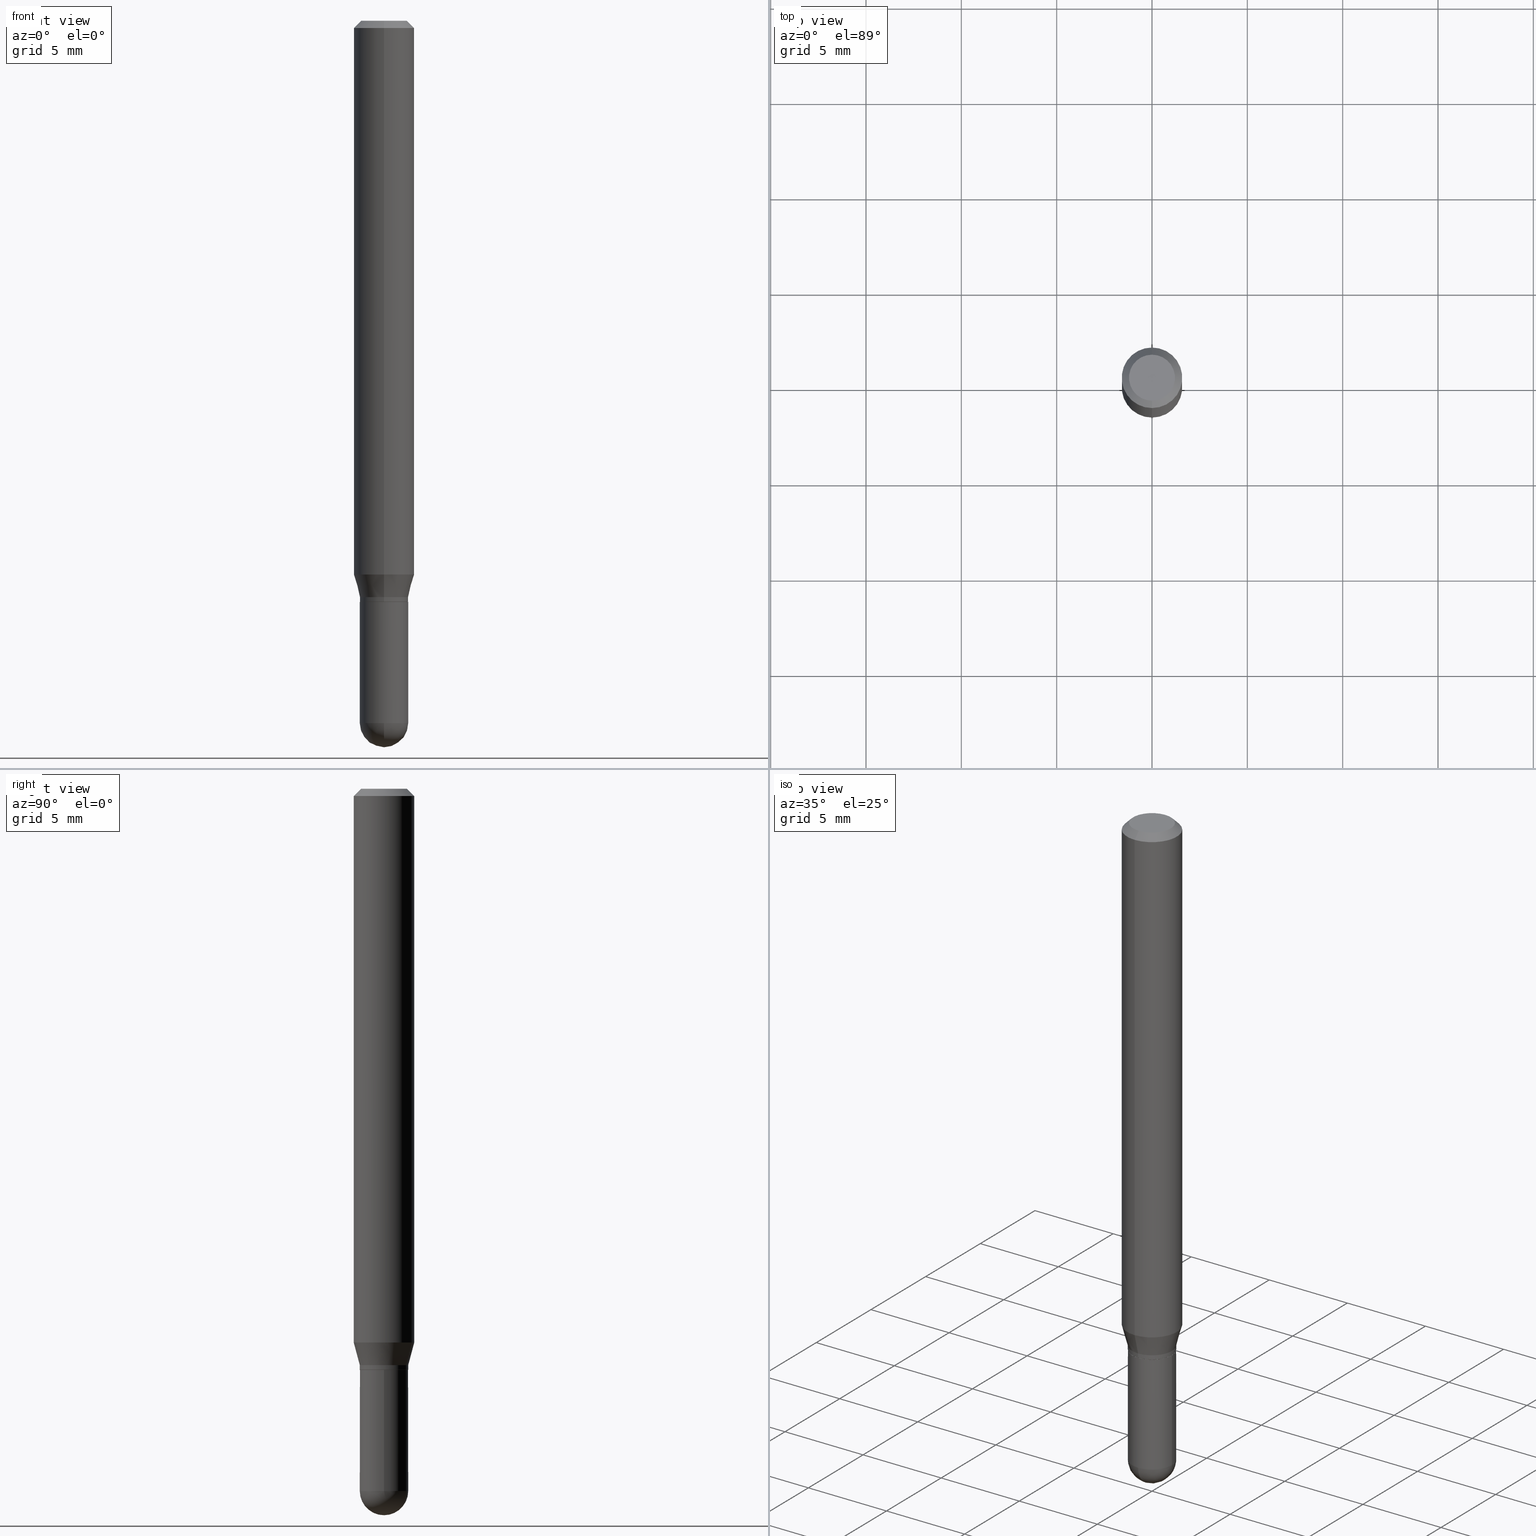
[diagram: canonical four-view strip — front | top / right | iso, engineering-drawing reading convention]
A machine part, canonical four-view strip (front | top / right | iso — engineering-drawing reading convention). The complete STEP part file that produces these views, byte-faithful:
ISO-10303-21;
HEADER;
FILE_DESCRIPTION (( 'STEP AP203' ),
    '1' );
FILE_NAME ('01494.STEP',
    '2024-03-07T21:42:19',
    ( '' ),
    ( '' ),
    'SwSTEP 2.0',
    'SolidWorks 2023',
    '' );
FILE_SCHEMA (( 'CONFIG_CONTROL_DESIGN' ));
ENDSEC;

DATA;
#1 = LINE ( 'NONE', #223, #100 ) ;
#2 = ORIENTED_EDGE ( 'NONE', *, *, #496, .F. ) ;
#3 = VECTOR ( 'NONE', #41, 39.37007874015748143 ) ;
#4 = PRODUCT ( '01494', '01494', '', ( #506 ) ) ;
#5 = EDGE_CURVE ( 'NONE', #416, #220, #344, .T. ) ;
#6 = FACE_OUTER_BOUND ( 'NONE', #309, .T. ) ;
#7 = DIRECTION ( 'NONE',  ( 7.105427357601001070E-15, 1.000000000000000000, 0.000000000000000000 ) ) ;
#8 = AXIS2_PLACEMENT_3D ( 'NONE', #204, #370, #127 ) ;
#9 = VERTEX_POINT ( 'NONE', #304 ) ;
#10 = AXIS2_PLACEMENT_3D ( 'NONE', #97, #431, #78 ) ;
#11 = EDGE_CURVE ( 'NONE', #9, #348, #324, .T. ) ;
#12 = DIRECTION ( 'NONE',  ( -2.445464009706415919E-29, 3.491488207673672253E-15, 1.000000000000000000 ) ) ;
#13 = FACE_OUTER_BOUND ( 'NONE', #422, .T. ) ;
#14 = DIRECTION ( 'NONE',  ( 1.000000000000000000, -6.982962677686265922E-15, 4.883557194083111780E-29 ) ) ;
#15 = DIRECTION ( 'NONE',  ( 5.024295867788190974E-15, 0.7071067811865681119, 0.7071067811865270336 ) ) ;
#16 = EDGE_CURVE ( 'NONE', #220, #398, #490, .T. ) ;
#17 = AXIS2_PLACEMENT_3D ( 'NONE', #193, #12, #311 ) ;
#18 = VECTOR ( 'NONE', #141, 39.37007874015748143 ) ;
#19 = PERSON ( 'UNSPECIFIED', 'UNSPECIFIED', 'UNSPECIFIED', ('UNSPECIFIED'), ('UNSPECIFIED'), ('UNSPECIFIED') ) ;
#20 = DATE_AND_TIME ( #206, #462 ) ;
#21 = SHAPE_DEFINITION_REPRESENTATION ( #42, #476 ) ;
#22 =( NAMED_UNIT ( * ) PLANE_ANGLE_UNIT ( ) SI_UNIT ( $, .RADIAN. ) );
#23 = CONICAL_SURFACE ( 'NONE', #305, 0.06250000000000000000, 0.7853981633974483900 ) ;
#24 = AXIS2_PLACEMENT_3D ( 'NONE', #163, #488, #121 ) ;
#25 = ADVANCED_FACE ( 'NONE', ( #387 ), #323, .T. ) ;
#26 = CARTESIAN_POINT ( 'NONE',  ( -3.773273898774340269E-16, -0.04749999999999999362, 1.569856965421183228E-16 ) ) ;
#27 = CIRCLE ( 'NONE', #10, 0.04999999999999999584 ) ;
#28 = APPROVAL_PERSON_ORGANIZATION ( #312, #358, #346 ) ;
#29 = DIRECTION ( 'NONE',  ( -6.982962677686265922E-15, -1.000000000000000000, 3.483106191921935554E-15 ) ) ;
#30 = ADVANCED_FACE ( 'NONE', ( #161 ), #122, .T. ) ;
#31 = ORIENTED_EDGE ( 'NONE', *, *, #16, .F. ) ;
#32 = ADVANCED_FACE ( 'NONE', ( #360 ), #23, .T. ) ;
#33 = DIRECTION ( 'NONE',  ( 0.000000000000000000, 0.000000000000000000, 1.000000000000000000 ) ) ;
#34 = CIRCLE ( 'NONE', #17, 0.05000000000000006523 ) ;
#35 = AXIS2_PLACEMENT_3D ( 'NONE', #480, #84, #155 ) ;
#36 = EDGE_LOOP ( 'NONE', ( #468, #299 ) ) ;
#37 = APPROVAL_STATUS ( 'not_yet_approved' ) ;
#38 = DIRECTION ( 'NONE',  ( -2.445468806185136597E-29, 3.491481338843145583E-15, 1.000000000000000000 ) ) ;
#39 = EDGE_LOOP ( 'NONE', ( #106, #419, #225, #69 ) ) ;
#40 = DIRECTION ( 'NONE',  ( -1.807323732225328167E-15, -0.2588190451025179084, 0.9659258262890690894 ) ) ;
#41 = DIRECTION ( 'NONE',  ( -2.445468806185136877E-29, 3.491481338843145188E-15, 1.000000000000000000 ) ) ;
#42 = PRODUCT_DEFINITION_SHAPE ( 'NONE', 'NONE',  #318 ) ;
#43 = CARTESIAN_POINT ( 'NONE',  ( 4.440892098500904235E-16, 0.06249999999999599626, -1.143349364905390075 ) ) ;
#44 = CYLINDRICAL_SURFACE ( 'NONE', #453, 0.05000000000000006523 ) ;
#45 = ORIENTED_EDGE ( 'NONE', *, *, #336, .T. ) ;
#46 = DIMENSIONAL_EXPONENTS ( 1.000000000000000000, 0.000000000000000000, 0.000000000000000000, 0.000000000000000000, 0.000000000000000000, 0.000000000000000000, 0.000000000000000000 ) ;
#47 = LINE ( 'NONE', #278, #461 ) ;
#48 = CARTESIAN_POINT ( 'NONE',  ( 3.541653937522551347E-29, -5.068771175318297793E-15, -1.450000000000000178 ) ) ;
#49 = ADVANCED_FACE ( 'NONE', ( #396 ), #482, .T. ) ;
#50 = DIRECTION ( 'NONE',  ( -6.982962677686265922E-15, -1.000000000000000000, 5.463695987328509871E-15 ) ) ;
#51 = AXIS2_PLACEMENT_3D ( 'NONE', #313, #116, #448 ) ;
#52 = PERSON_AND_ORGANIZATION_ROLE ( 'design_supplier' ) ;
#53 = CIRCLE ( 'NONE', #203, 0.04999999999999999584 ) ;
#54 = CC_DESIGN_APPROVAL ( #479, ( #297 ) ) ;
#55 = CARTESIAN_POINT ( 'NONE',  ( 3.840629472727447874E-16, 0.04749999999999999362, -1.747056831868805136E-16 ) ) ;
#56 = PERSON_AND_ORGANIZATION_ROLE ( 'classification_officer' ) ;
#57 = EDGE_LOOP ( 'NONE', ( #432, #245, #465, #293 ) ) ;
#58 = EDGE_CURVE ( 'NONE', #327, #62, #123, .T. ) ;
#59 = DIRECTION ( 'NONE',  ( 6.982962677686265922E-15, 1.000000000000000000, -3.483106191921935554E-15 ) ) ;
#60 = ORIENTED_EDGE ( 'NONE', *, *, #88, .T. ) ;
#61 = EDGE_CURVE ( 'NONE', #83, #259, #469, .T. ) ;
#62 = VERTEX_POINT ( 'NONE', #236 ) ;
#63 = AXIS2_PLACEMENT_3D ( 'NONE', #334, #33, #64 ) ;
#64 = DIRECTION ( 'NONE',  ( 1.000000000000000000, 0.000000000000000000, 0.000000000000000000 ) ) ;
#65 = DIRECTION ( 'NONE',  ( 6.982962677686265922E-15, 1.000000000000000000, -3.483106191921935554E-15 ) ) ;
#66 = CONICAL_SURFACE ( 'NONE', #279, 0.06250000000000000000, 0.7853981633974483900 ) ;
#67 = ORIENTED_EDGE ( 'NONE', *, *, #102, .F. ) ;
#68 = EDGE_CURVE ( 'NONE', #259, #83, #34, .T. ) ;
#69 = ORIENTED_EDGE ( 'NONE', *, *, #355, .F. ) ;
#70 = APPROVAL_ROLE ( '' ) ;
#71 = ORIENTED_EDGE ( 'NONE', *, *, #264, .F. ) ;
#72 = FACE_OUTER_BOUND ( 'NONE', #150, .T. ) ;
#73 = CIRCLE ( 'NONE', #251, 0.06250000000000000000 ) ;
#74 = DIRECTION ( 'NONE',  ( -6.982962677686265133E-15, -1.000000000000000000, 2.731847993664259669E-15 ) ) ;
#75 = DIRECTION ( 'NONE',  ( -2.445468806185136597E-29, 3.491481338843145583E-15, 1.000000000000000000 ) ) ;
#76 = DIRECTION ( 'NONE',  ( -6.982962677686265133E-15, -1.000000000000000000, 3.491488207673672253E-15 ) ) ;
#77 = ADVANCED_FACE ( 'NONE', ( #6 ), #195, .T. ) ;
#78 = DIRECTION ( 'NONE',  ( 1.000000000000000000, -6.982962677686275388E-15, 0.000000000000000000 ) ) ;
#79 = ORIENTED_EDGE ( 'NONE', *, *, #509, .T. ) ;
#80 = ORIENTED_EDGE ( 'NONE', *, *, #5, .F. ) ;
#81 = CARTESIAN_POINT ( 'NONE',  ( -3.491481338843137300E-16, -0.05000000000000006523, 1.745744103836838395E-16 ) ) ;
#82 = AXIS2_PLACEMENT_3D ( 'NONE', #447, #391, #351 ) ;
#83 = VERTEX_POINT ( 'NONE', #282 ) ;
#84 = DIRECTION ( 'NONE',  ( -2.445468806185136597E-29, 3.491481338843145583E-15, 1.000000000000000000 ) ) ;
#85 = DIRECTION ( 'NONE',  ( -2.445464009706415919E-29, 3.491488207673672253E-15, 1.000000000000000000 ) ) ;
#86 = ORIENTED_EDGE ( 'NONE', *, *, #228, .T. ) ;
#87 = DIRECTION ( 'NONE',  ( -2.445464009706415919E-29, 3.491488207673672253E-15, 1.000000000000000000 ) ) ;
#88 = EDGE_CURVE ( 'NONE', #369, #9, #320, .T. ) ;
#89 = AXIS2_PLACEMENT_3D ( 'NONE', #408, #393, #285 ) ;
#90 = CIRCLE ( 'NONE', #35, 0.04999999999999999584 ) ;
#91 = PERSON_AND_ORGANIZATION ( #19, #384 ) ;
#92 = ORIENTED_EDGE ( 'NONE', *, *, #301, .F. ) ;
#93 = EDGE_CURVE ( 'NONE', #340, #369, #445, .T. ) ;
#94 = CALENDAR_DATE ( 2024, 7, 3 ) ;
#95 = FACE_OUTER_BOUND ( 'NONE', #478, .T. ) ;
#96 =( GEOMETRIC_REPRESENTATION_CONTEXT ( 3 ) GLOBAL_UNCERTAINTY_ASSIGNED_CONTEXT ( ( #162 ) ) GLOBAL_UNIT_ASSIGNED_CONTEXT ( ( #374, #22, #457 ) ) REPRESENTATION_CONTEXT ( 'NONE', 'WORKASPACE' ) );
#97 = CARTESIAN_POINT ( 'NONE',  ( 3.545929768968448850E-29, -5.062647941322561509E-15, -1.450000000000000178 ) ) ;
#98 = FACE_OUTER_BOUND ( 'NONE', #267, .T. ) ;
#99 = CARTESIAN_POINT ( 'NONE',  ( -3.491481338842846900E-16, -0.05000000000000429101, -1.199500000000000011 ) ) ;
#100 = VECTOR ( 'NONE', #303, 39.37007874015748854 ) ;
#101 = ORIENTED_EDGE ( 'NONE', *, *, #61, .T. ) ;
#102 = EDGE_CURVE ( 'NONE', #416, #508, #284, .T. ) ;
#103 = ORIENTED_EDGE ( 'NONE', *, *, #125, .T. ) ;
#104 = ORIENTED_EDGE ( 'NONE', *, *, #354, .F. ) ;
#105 = LINE ( 'NONE', #261, #18 ) ;
#106 = ORIENTED_EDGE ( 'NONE', *, *, #337, .F. ) ;
#107 = ORIENTED_EDGE ( 'NONE', *, *, #450, .T. ) ;
#108 = PLANE ( 'NONE',  #109 ) ;
#109 = AXIS2_PLACEMENT_3D ( 'NONE', #133, #294, #343 ) ;
#110 = DIRECTION ( 'NONE',  ( -2.445464009706415919E-29, 3.491488207673672253E-15, 1.000000000000000000 ) ) ;
#111 = PRODUCT_RELATED_PRODUCT_CATEGORY ( 'detail', '', ( #4 ) ) ;
#112 = FACE_OUTER_BOUND ( 'NONE', #275, .T. ) ;
#113 = CARTESIAN_POINT ( 'NONE',  ( 3.517186542012788950E-16, 0.04949999999999581124, -1.200000000000000400 ) ) ;
#114 = EDGE_CURVE ( 'NONE', #340, #348, #47, .T. ) ;
#115 = EDGE_CURVE ( 'NONE', #348, #259, #119, .T. ) ;
#116 = DIRECTION ( 'NONE',  ( -2.445464009706415919E-29, 3.491488207673672253E-15, 1.000000000000000000 ) ) ;
#117 = VECTOR ( 'NONE', #214, 39.37007874015748143 ) ;
#118 = CARTESIAN_POINT ( 'NONE',  ( 2.796019722396818456E-29, -3.991990824818351621E-15, -1.143349364905389853 ) ) ;
#119 = LINE ( 'NONE', #81, #366 ) ;
#120 = LINE ( 'NONE', #237, #435 ) ;
#121 = DIRECTION ( 'NONE',  ( -6.982962677686265133E-15, -1.000000000000000000, 2.731847993664259669E-15 ) ) ;
#122 = CYLINDRICAL_SURFACE ( 'NONE', #51, 0.06250000000000000000 ) ;
#123 = CIRCLE ( 'NONE', #250, 0.05000000000000014849 ) ;
#124 = DATE_TIME_ROLE ( 'creation_date' ) ;
#125 = EDGE_CURVE ( 'NONE', #429, #260, #120, .T. ) ;
#126 = DATE_AND_TIME ( #329, #258 ) ;
#127 = DIRECTION ( 'NONE',  ( 6.982962677686265922E-15, 1.000000000000000000, -3.491488207673672253E-15 ) ) ;
#128 = APPROVAL_DATE_TIME ( #208, #358 ) ;
#129 = CLOSED_SHELL ( 'NONE', ( #77, #25, #132, #144, #263 ) ) ;
#130 = CIRCLE ( 'NONE', #210, 0.04749999999999999362 ) ;
#131 = CARTESIAN_POINT ( 'NONE',  ( 2.933334079642846339E-29, -4.188040105104570702E-15, -1.199500000000000233 ) ) ;
#132 = ADVANCED_FACE ( 'NONE', ( #363 ), #156, .F. ) ;
#133 = CARTESIAN_POINT ( 'NONE',  ( 2.934556811647699776E-29, -4.189785849208407808E-15, -1.200000000000000178 ) ) ;
#134 = APPLICATION_PROTOCOL_DEFINITION ( 'international standard', 'config_control_design', 1994, #406 ) ;
#135 = DIRECTION ( 'NONE',  ( 2.445464009706415919E-29, -3.491488207673672253E-15, -1.000000000000000000 ) ) ;
#136 = APPROVAL ( #295, 'UNSPECIFIED' ) ;
#137 = LINE ( 'NONE', #178, #139 ) ;
#138 = PERSON_AND_ORGANIZATION_ROLE ( 'design_owner' ) ;
#139 = VECTOR ( 'NONE', #505, 39.37007874015748143 ) ;
#140 = ORIENTED_EDGE ( 'NONE', *, *, #114, .T. ) ;
#141 = DIRECTION ( 'NONE',  ( -2.445468806185136877E-29, 3.491481338843145188E-15, 1.000000000000000000 ) ) ;
#142 = ORIENTED_EDGE ( 'NONE', *, *, #449, .F. ) ;
#143 = ORIENTED_EDGE ( 'NONE', *, *, #219, .T. ) ;
#144 = ADVANCED_FACE ( 'NONE', ( #441 ), #404, .T. ) ;
#145 = ORIENTED_EDGE ( 'NONE', *, *, #336, .F. ) ;
#146 = CARTESIAN_POINT ( 'NONE',  ( 0.000000000000000000, 0.000000000000000000, 0.000000000000000000 ) ) ;
#147 = LINE ( 'NONE', #418, #117 ) ;
#148 = DIRECTION ( 'NONE',  ( -6.982962677686266711E-15, -1.000000000000000000, 3.491488207673672253E-15 ) ) ;
#149 = AXIS2_PLACEMENT_3D ( 'NONE', #440, #239, #322 ) ;
#150 = EDGE_LOOP ( 'NONE', ( #176, #184, #243, #302 ) ) ;
#151 = CARTESIAN_POINT ( 'NONE',  ( -3.491481338842845914E-16, -0.05000000000000422162, -1.190000000000000391 ) ) ;
#152 = ORIENTED_EDGE ( 'NONE', *, *, #219, .F. ) ;
#153 = DIRECTION ( 'NONE',  ( -2.445468806185136597E-29, 3.491481338843145583E-15, 1.000000000000000000 ) ) ;
#154 = ORIENTED_EDGE ( 'NONE', *, *, #228, .F. ) ;
#155 = DIRECTION ( 'NONE',  ( 1.000000000000000000, -6.982962677686275388E-15, 0.000000000000000000 ) ) ;
#156 = PLANE ( 'NONE',  #315 ) ;
#157 = AXIS2_PLACEMENT_3D ( 'NONE', #332, #289, #451 ) ;
#158 = LOCAL_TIME ( 16, 42, 19.00000000000000000, #499 ) ;
#159 = MANIFOLD_SOLID_BREP ( 'Body-Move/Copy2[1]', #129 ) ;
#160 = DIRECTION ( 'NONE',  ( -4.851104656540964275E-15, -0.7071067811865500152, -0.7071067811865450192 ) ) ;
#161 = FACE_OUTER_BOUND ( 'NONE', #57, .T. ) ;
#162 = UNCERTAINTY_MEASURE_WITH_UNIT (LENGTH_MEASURE( 1.000000000000000082E-05 ), #374, 'distance_accuracy_value', 'NONE');
#163 = CARTESIAN_POINT ( 'NONE',  ( 2.910102171550636088E-29, -4.154870967131671208E-15, -1.190000000000000391 ) ) ;
#164 = DIRECTION ( 'NONE',  ( 1.000000000000000000, -6.982962677686275388E-15, 0.000000000000000000 ) ) ;
#165 = CIRCLE ( 'NONE', #233, 0.06250000000000000000 ) ;
#166 = ORIENTED_EDGE ( 'NONE', *, *, #58, .F. ) ;
#167 = CALENDAR_DATE ( 2024, 7, 3 ) ;
#168 = ADVANCED_FACE ( 'NONE', ( #240 ), #207, .T. ) ;
#169 = CC_DESIGN_PERSON_AND_ORGANIZATION_ASSIGNMENT ( #443, #400, ( #297 ) ) ;
#170 = PLANE ( 'NONE',  #8 ) ;
#171 = CLOSED_SHELL ( 'NONE', ( #454, #394, #487, #30, #49, #246, #168, #32, #202, #326, #191, #407 ) ) ;
#172 = AXIS2_PLACEMENT_3D ( 'NONE', #182, #338, #300 ) ;
#173 = FACE_OUTER_BOUND ( 'NONE', #466, .T. ) ;
#174 = FACE_OUTER_BOUND ( 'NONE', #39, .T. ) ;
#175 = CALENDAR_DATE ( 2024, 7, 3 ) ;
#176 = ORIENTED_EDGE ( 'NONE', *, *, #509, .F. ) ;
#177 = CC_DESIGN_PERSON_AND_ORGANIZATION_ASSIGNMENT ( #179, #138, ( #4 ) ) ;
#178 = CARTESIAN_POINT ( 'NONE',  ( 4.364351673553919652E-16, 0.06249999999999995143, -0.01500000000000022669 ) ) ;
#179 = PERSON_AND_ORGANIZATION ( #19, #384 ) ;
#180 = ORIENTED_EDGE ( 'NONE', *, *, #314, .T. ) ;
#181 = ORIENTED_EDGE ( 'NONE', *, *, #102, .T. ) ;
#182 = CARTESIAN_POINT ( 'NONE',  ( 2.934556811647699776E-29, -4.189785849208407808E-15, -1.200000000000000178 ) ) ;
#183 = AXIS2_PLACEMENT_3D ( 'NONE', #310, #473, #276 ) ;
#184 = ORIENTED_EDGE ( 'NONE', *, *, #11, .T. ) ;
#185 = CARTESIAN_POINT ( 'NONE',  ( 3.668196014559625946E-31, -5.237232311510511609E-17, -0.01500000000000000812 ) ) ;
#186 = ORIENTED_EDGE ( 'NONE', *, *, #11, .F. ) ;
#187 = VERTEX_POINT ( 'NONE', #26 ) ;
#188 = CARTESIAN_POINT ( 'NONE',  ( 0.000000000000000000, 0.000000000000000000, 0.000000000000000000 ) ) ;
#189 = AXIS2_PLACEMENT_3D ( 'NONE', #434, #485, #164 ) ;
#190 = ORIENTED_EDGE ( 'NONE', *, *, #5, .T. ) ;
#191 = ADVANCED_FACE ( 'NONE', ( #173 ), #241, .T. ) ;
#192 = CARTESIAN_POINT ( 'NONE',  ( 3.491481338843426713E-16, 0.04999999999999581168, -1.200000000000000400 ) ) ;
#193 = CARTESIAN_POINT ( 'NONE',  ( 2.910102171550636088E-29, -4.154870967131671208E-15, -1.190000000000000391 ) ) ;
#194 = CARTESIAN_POINT ( 'NONE',  ( -4.287811248607203282E-16, -0.06250000000000005551, -0.01499999999999979128 ) ) ;
#195 = CYLINDRICAL_SURFACE ( 'NONE', #417, 0.04999999999999999584 ) ;
#196 = CIRCLE ( 'NONE', #359, 0.06250000000000000000 ) ;
#197 = APPROVAL_STATUS ( 'not_yet_approved' ) ;
#198 = ORIENTED_EDGE ( 'NONE', *, *, #415, .F. ) ;
#199 = CARTESIAN_POINT ( 'NONE',  ( 3.541653937522551347E-29, -5.068771175318297793E-15, -1.450000000000000178 ) ) ;
#200 = ORIENTED_EDGE ( 'NONE', *, *, #88, .F. ) ;
#201 = CARTESIAN_POINT ( 'NONE',  ( 0.000000000000000000, 0.000000000000000000, 0.000000000000000000 ) ) ;
#202 = ADVANCED_FACE ( 'NONE', ( #95 ), #170, .F. ) ;
#203 = AXIS2_PLACEMENT_3D ( 'NONE', #459, #347, #217 ) ;
#204 = CARTESIAN_POINT ( 'NONE',  ( 3.316907271900976096E-16, 0.04749999999999999362, -1.702756865256899659E-16 ) ) ;
#205 = EDGE_CURVE ( 'NONE', #62, #416, #27, .T. ) ;
#206 = CALENDAR_DATE ( 2024, 7, 3 ) ;
#207 = CYLINDRICAL_SURFACE ( 'NONE', #222, 0.06250000000000000000 ) ;
#208 = DATE_AND_TIME ( #94, #158 ) ;
#209 = AXIS2_PLACEMENT_3D ( 'NONE', #280, #437, #356 ) ;
#210 = AXIS2_PLACEMENT_3D ( 'NONE', #319, #270, #148 ) ;
#211 = LOCAL_TIME ( 16, 42, 19.00000000000000000, #238 ) ;
#212 = CARTESIAN_POINT ( 'NONE',  ( 3.668196014559625946E-31, -5.237232311510511609E-17, -0.01500000000000000812 ) ) ;
#213 = EDGE_LOOP ( 'NONE', ( #390, #79, #511, #265 ) ) ;
#214 = DIRECTION ( 'NONE',  ( -2.445464009706415919E-29, 3.491488207673672253E-15, 1.000000000000000000 ) ) ;
#215 = DIRECTION ( 'NONE',  ( -2.445464009706415919E-29, 3.491488207673672253E-15, 1.000000000000000000 ) ) ;
#216 = ORIENTED_EDGE ( 'NONE', *, *, #205, .F. ) ;
#217 = DIRECTION ( 'NONE',  ( 1.000000000000000000, -6.982962677686275388E-15, 0.000000000000000000 ) ) ;
#218 = DIRECTION ( 'NONE',  ( -2.445464009706415919E-29, 3.491488207673672253E-15, 1.000000000000000000 ) ) ;
#219 = EDGE_CURVE ( 'NONE', #508, #345, #90, .T. ) ;
#220 = VERTEX_POINT ( 'NONE', #401 ) ;
#221 = EDGE_CURVE ( 'NONE', #429, #460, #165, .T. ) ;
#222 = AXIS2_PLACEMENT_3D ( 'NONE', #498, #494, #254 ) ;
#223 = CARTESIAN_POINT ( 'NONE',  ( 3.552713678800795963E-16, 0.04999999999999590883, -1.190000000000000613 ) ) ;
#224 = AXIS2_PLACEMENT_3D ( 'NONE', #131, #339, #377 ) ;
#225 = ORIENTED_EDGE ( 'NONE', *, *, #493, .T. ) ;
#226 = CARTESIAN_POINT ( 'NONE',  ( 0.04999999999999999584, -4.975360907851482386E-15, -1.450000000000000178 ) ) ;
#227 = DIRECTION ( 'NONE',  ( 1.000000000000000000, -6.982962677686274599E-15, 0.000000000000000000 ) ) ;
#228 = EDGE_CURVE ( 'NONE', #460, #429, #330, .T. ) ;
#229 = CARTESIAN_POINT ( 'NONE',  ( 3.541653937522551347E-29, -5.068771175318297793E-15, -1.450000000000000178 ) ) ;
#230 = VERTEX_POINT ( 'NONE', #55 ) ;
#231 = ORIENTED_EDGE ( 'NONE', *, *, #16, .T. ) ;
#232 = CARTESIAN_POINT ( 'NONE',  ( -4.364351673553637142E-16, -0.06250000000000399680, -1.143349364905389409 ) ) ;
#233 = AXIS2_PLACEMENT_3D ( 'NONE', #118, #281, #438 ) ;
#234 = APPROVAL_PERSON_ORGANIZATION ( #365, #479, #409 ) ;
#235 = DIRECTION ( 'NONE',  ( 1.000000000000000000, -6.982962677686265922E-15, 4.883557194083111780E-29 ) ) ;
#236 = CARTESIAN_POINT ( 'NONE',  ( 3.552713678800859565E-16, 0.04999999999999501371, -1.450000000000000400 ) ) ;
#237 = CARTESIAN_POINT ( 'NONE',  ( -4.364351673553916201E-16, -0.06250000000000000000, 2.182180129796045158E-16 ) ) ;
#238 = COORDINATED_UNIVERSAL_TIME_OFFSET ( 5, 0, .BEHIND. ) ;
#239 = DIRECTION ( 'NONE',  ( -2.445464009706415919E-29, 3.491488207673672253E-15, 1.000000000000000000 ) ) ;
#240 = FACE_OUTER_BOUND ( 'NONE', #385, .T. ) ;
#241 = CONICAL_SURFACE ( 'NONE', #157, 0.04950000000000000233, 0.7853981633974739252 ) ;
#242 = PERSON_AND_ORGANIZATION ( #19, #384 ) ;
#243 = ORIENTED_EDGE ( 'NONE', *, *, #115, .T. ) ;
#244 = DIRECTION ( 'NONE',  ( -6.982962677686265133E-15, -1.000000000000000000, 2.731847993664259669E-15 ) ) ;
#245 = ORIENTED_EDGE ( 'NONE', *, *, #354, .T. ) ;
#246 = ADVANCED_FACE ( 'NONE', ( #13 ), #307, .T. ) ;
#247 = ORIENTED_EDGE ( 'NONE', *, *, #301, .T. ) ;
#248 = APPLICATION_CONTEXT ( 'configuration controlled 3d designs of mechanical parts and assemblies' ) ;
#249 = EDGE_CURVE ( 'NONE', #369, #340, #316, .T. ) ;
#250 = AXIS2_PLACEMENT_3D ( 'NONE', #48, #477, #7 ) ;
#251 = AXIS2_PLACEMENT_3D ( 'NONE', #212, #218, #500 ) ;
#252 = CC_DESIGN_SECURITY_CLASSIFICATION ( #412, ( #297 ) ) ;
#253 = PERSON_AND_ORGANIZATION_ROLE ( 'creator' ) ;
#254 = DIRECTION ( 'NONE',  ( -6.982962677686265922E-15, -1.000000000000000000, 3.491488207673672253E-15 ) ) ;
#255 = CYLINDRICAL_SURFACE ( 'NONE', #368, 0.05000000000000006523 ) ;
#256 = LENGTH_MEASURE_WITH_UNIT ( LENGTH_MEASURE( 0.02539999999999999897 ), #292 );
#257 = AXIS2_PLACEMENT_3D ( 'NONE', #272, #75, #227 ) ;
#258 = LOCAL_TIME ( 16, 42, 19.00000000000000000, #381 ) ;
#259 = VERTEX_POINT ( 'NONE', #151 ) ;
#260 = VERTEX_POINT ( 'NONE', #475 ) ;
#261 = CARTESIAN_POINT ( 'NONE',  ( 0.04999999999999999584, -3.491481338843132862E-16, 2.438088387897967896E-30 ) ) ;
#262 = APPLICATION_PROTOCOL_DEFINITION ( 'international standard', 'config_control_design', 1994, #248 ) ;
#263 = ADVANCED_FACE ( 'NONE', ( #112 ), #277, .T. ) ;
#264 = EDGE_CURVE ( 'NONE', #507, #260, #196, .T. ) ;
#265 = ORIENTED_EDGE ( 'NONE', *, *, #115, .F. ) ;
#266 = DIRECTION ( 'NONE',  ( -6.982962677686266711E-15, -1.000000000000000000, 3.491488207673672253E-15 ) ) ;
#267 = EDGE_LOOP ( 'NONE', ( #375, #60, #2, #492 ) ) ;
#268 = CC_DESIGN_DATE_AND_TIME_ASSIGNMENT ( #333, #458, ( #412 ) ) ;
#269 = CARTESIAN_POINT ( 'NONE',  ( 3.661789462108859761E-29, -5.246406859258323786E-15, -1.500000000000000444 ) ) ;
#270 = DIRECTION ( 'NONE',  ( -2.445464009706415919E-29, 3.491488207673672253E-15, 1.000000000000000000 ) ) ;
#271 = CC_DESIGN_APPROVAL ( #136, ( #318 ) ) ;
#272 = CARTESIAN_POINT ( 'NONE',  ( 2.934562567422164701E-29, -4.189777606611775804E-15, -1.200000000000000178 ) ) ;
#273 = DIRECTION ( 'NONE',  ( -2.445464009706415919E-29, 3.491488207673672253E-15, 1.000000000000000000 ) ) ;
#274 = ORIENTED_EDGE ( 'NONE', *, *, #264, .T. ) ;
#275 = EDGE_LOOP ( 'NONE', ( #80, #181, #143, #180, #31 ) ) ;
#276 = DIRECTION ( 'NONE',  ( 1.000000000000000000, -6.982962677686274599E-15, 0.000000000000000000 ) ) ;
#277 = CYLINDRICAL_SURFACE ( 'NONE', #325, 0.04999999999999999584 ) ;
#278 = CARTESIAN_POINT ( 'NONE',  ( -3.456566525454408447E-16, -0.04950000000000419342, -1.199999999999999956 ) ) ;
#279 = AXIS2_PLACEMENT_3D ( 'NONE', #287, #135, #65 ) ;
#280 = CARTESIAN_POINT ( 'NONE',  ( 2.934556811647699776E-29, -4.189785849208407808E-15, -1.200000000000000178 ) ) ;
#281 = DIRECTION ( 'NONE',  ( -2.445464009706415919E-29, 3.491488207673672253E-15, 1.000000000000000000 ) ) ;
#282 = CARTESIAN_POINT ( 'NONE',  ( 3.996802888650851578E-16, 0.04999999999999590883, -1.190000000000000613 ) ) ;
#283 = DIRECTION ( 'NONE',  ( -4.937700262164674260E-15, -0.7071067811865632269, 0.7071067811865319186 ) ) ;
#284 = CIRCLE ( 'NONE', #189, 0.04999999999999999584 ) ;
#285 = DIRECTION ( 'NONE',  ( -6.982962677686265133E-15, -1.000000000000000000, 2.731847993664259669E-15 ) ) ;
#286 = CIRCLE ( 'NONE', #342, 0.04749999999999999362 ) ;
#287 = CARTESIAN_POINT ( 'NONE',  ( 3.668196014559625946E-31, -5.237232311510511609E-17, -0.01500000000000000812 ) ) ;
#288 = ORIENTED_EDGE ( 'NONE', *, *, #415, .T. ) ;
#289 = DIRECTION ( 'NONE',  ( -2.445464009706415919E-29, 3.491488207673672253E-15, 1.000000000000000000 ) ) ;
#290 = APPROVAL_DATE_TIME ( #126, #136 ) ;
#291 = CC_DESIGN_APPROVAL ( #358, ( #412 ) ) ;
#292 =( LENGTH_UNIT ( ) NAMED_UNIT ( * ) SI_UNIT ( $, .METRE. ) );
#293 = ORIENTED_EDGE ( 'NONE', *, *, #125, .F. ) ;
#294 = DIRECTION ( 'NONE',  ( -2.445464009706415639E-29, 3.491488207673672253E-15, 1.000000000000000000 ) ) ;
#295 = APPROVAL_STATUS ( 'not_yet_approved' ) ;
#296 = AXIS2_PLACEMENT_3D ( 'NONE', #481, #489, #244 ) ;
#297 = PRODUCT_DEFINITION_FORMATION_WITH_SPECIFIED_SOURCE ( 'ANY', '', #4, .NOT_KNOWN. ) ;
#298 = ORIENTED_EDGE ( 'NONE', *, *, #337, .T. ) ;
#299 = ORIENTED_EDGE ( 'NONE', *, *, #249, .F. ) ;
#300 = DIRECTION ( 'NONE',  ( -6.982962677686265922E-15, -1.000000000000000000, 2.759442417842689940E-15 ) ) ;
#301 = EDGE_CURVE ( 'NONE', #83, #460, #1, .T. ) ;
#302 = ORIENTED_EDGE ( 'NONE', *, *, #61, .F. ) ;
#303 = DIRECTION ( 'NONE',  ( 1.839019923739597949E-15, 0.2588190451025246253, 0.9659258262890670910 ) ) ;
#304 = CARTESIAN_POINT ( 'NONE',  ( 3.552713678800795963E-16, 0.04999999999999583944, -1.199500000000000233 ) ) ;
#305 = AXIS2_PLACEMENT_3D ( 'NONE', #486, #317, #59 ) ;
#306 = DIRECTION ( 'NONE',  ( -2.445464009706415919E-29, 3.491488207673672253E-15, 1.000000000000000000 ) ) ;
#307 = CONICAL_SURFACE ( 'NONE', #24, 0.05000000000000006523, 0.2617993877991499629 ) ;
#308 = LINE ( 'NONE', #376, #402 ) ;
#309 = EDGE_LOOP ( 'NONE', ( #444, #190, #198, #362, #45 ) ) ;
#310 = CARTESIAN_POINT ( 'NONE',  ( 2.934562567422164701E-29, -4.189777606611775804E-15, -1.200000000000000178 ) ) ;
#311 = DIRECTION ( 'NONE',  ( -6.982962677686265133E-15, -1.000000000000000000, 2.731847993664259669E-15 ) ) ;
#312 = PERSON_AND_ORGANIZATION ( #19, #384 ) ;
#313 = CARTESIAN_POINT ( 'NONE',  ( 0.000000000000000000, 0.000000000000000000, 0.000000000000000000 ) ) ;
#314 = EDGE_CURVE ( 'NONE', #345, #398, #105, .T. ) ;
#315 = AXIS2_PLACEMENT_3D ( 'NONE', #192, #353, #399 ) ;
#316 = CIRCLE ( 'NONE', #82, 0.04950000000000000233 ) ;
#317 = DIRECTION ( 'NONE',  ( 2.445464009706415919E-29, -3.491488207673672253E-15, -1.000000000000000000 ) ) ;
#318 = PRODUCT_DEFINITION ( 'UNKNOWN', '', #297, #474 ) ;
#319 = CARTESIAN_POINT ( 'NONE',  ( 2.166679479612211381E-46, -3.093456220516102993E-32, -8.859993322381083085E-18 ) ) ;
#320 = LINE ( 'NONE', #113, #371 ) ;
#321 = LINE ( 'NONE', #194, #484 ) ;
#322 = DIRECTION ( 'NONE',  ( -6.982962677686265922E-15, -1.000000000000000000, 4.370956789862821150E-15 ) ) ;
#323 = SPHERICAL_SURFACE ( 'NONE', #501, 0.05000000000000014849 ) ;
#324 = CIRCLE ( 'NONE', #426, 0.05000000000000006523 ) ;
#325 = AXIS2_PLACEMENT_3D ( 'NONE', #455, #38, #420 ) ;
#326 = ADVANCED_FACE ( 'NONE', ( #467 ), #108, .F. ) ;
#327 = VERTEX_POINT ( 'NONE', #269 ) ;
#328 = DATE_AND_TIME ( #167, #211 ) ;
#329 = CALENDAR_DATE ( 2024, 7, 3 ) ;
#330 = CIRCLE ( 'NONE', #149, 0.06250000000000000000 ) ;
#331 = CARTESIAN_POINT ( 'NONE',  ( 4.440892098500907193E-16, 0.06249999999999995143, -0.01500000000000022669 ) ) ;
#332 = CARTESIAN_POINT ( 'NONE',  ( 2.934556811647699776E-29, -4.189785849208407808E-15, -1.200000000000000178 ) ) ;
#333 = DATE_AND_TIME ( #175, #403 ) ;
#334 = CARTESIAN_POINT ( 'NONE',  ( 0.000000000000000000, 0.000000000000000000, 0.000000000000000000 ) ) ;
#335 = MANIFOLD_SOLID_BREP ( 'Body-Move/Copy2[2]', #171 ) ;
#336 = EDGE_CURVE ( 'NONE', #345, #62, #53, .T. ) ;
#337 = EDGE_CURVE ( 'NONE', #187, #230, #286, .T. ) ;
#338 = DIRECTION ( 'NONE',  ( -2.445464009706415919E-29, 3.491488207673672253E-15, 1.000000000000000000 ) ) ;
#339 = DIRECTION ( 'NONE',  ( -2.445464009706415919E-29, 3.491488207673672253E-15, 1.000000000000000000 ) ) ;
#340 = VERTEX_POINT ( 'NONE', #428 ) ;
#341 = ORIENTED_EDGE ( 'NONE', *, *, #355, .T. ) ;
#342 = AXIS2_PLACEMENT_3D ( 'NONE', #510, #386, #266 ) ;
#343 = DIRECTION ( 'NONE',  ( -6.982962677686265922E-15, -1.000000000000000000, 3.491488207673672253E-15 ) ) ;
#344 = LINE ( 'NONE', #512, #3 ) ;
#345 = VERTEX_POINT ( 'NONE', #226 ) ;
#346 = APPROVAL_ROLE ( '' ) ;
#347 = DIRECTION ( 'NONE',  ( -2.445468806185136597E-29, 3.491481338843145583E-15, 1.000000000000000000 ) ) ;
#348 = VERTEX_POINT ( 'NONE', #99 ) ;
#349 = VECTOR ( 'NONE', #215, 39.37007874015748143 ) ;
#350 = DIRECTION ( 'NONE',  ( -6.982962677686265922E-15, -1.000000000000000000, 0.000000000000000000 ) ) ;
#351 = DIRECTION ( 'NONE',  ( -6.982962677686265922E-15, -1.000000000000000000, 2.759442417842689940E-15 ) ) ;
#352 = ORIENTED_EDGE ( 'NONE', *, *, #413, .F. ) ;
#353 = DIRECTION ( 'NONE',  ( 2.438088387897960049E-29, -3.491481338843145188E-15, -1.000000000000000000 ) ) ;
#354 = EDGE_CURVE ( 'NONE', #460, #507, #147, .T. ) ;
#355 = EDGE_CURVE ( 'NONE', #230, #507, #137, .T. ) ;
#356 = DIRECTION ( 'NONE',  ( -6.982962677686265922E-15, -1.000000000000000000, 2.759442417842689940E-15 ) ) ;
#357 = ORIENTED_EDGE ( 'NONE', *, *, #68, .T. ) ;
#358 = APPROVAL ( #37, 'UNSPECIFIED' ) ;
#359 = AXIS2_PLACEMENT_3D ( 'NONE', #185, #373, #29 ) ;
#360 = FACE_OUTER_BOUND ( 'NONE', #463, .T. ) ;
#361 = SECURITY_CLASSIFICATION_LEVEL ( 'unclassified' ) ;
#362 = ORIENTED_EDGE ( 'NONE', *, *, #314, .F. ) ;
#363 = FACE_OUTER_BOUND ( 'NONE', #472, .T. ) ;
#364 = DIRECTION ( 'NONE',  ( 1.000000000000000000, -6.982962677686265922E-15, 4.876176775795936353E-29 ) ) ;
#365 = PERSON_AND_ORGANIZATION ( #19, #384 ) ;
#366 = VECTOR ( 'NONE', #87, 39.37007874015748143 ) ;
#367 = DIRECTION ( 'NONE',  ( -6.982962677686265922E-15, -1.000000000000000000, 5.463695987328509871E-15 ) ) ;
#368 = AXIS2_PLACEMENT_3D ( 'NONE', #188, #273, #76 ) ;
#369 = VERTEX_POINT ( 'NONE', #380 ) ;
#370 = DIRECTION ( 'NONE',  ( 2.445464009706415639E-29, -3.491488207673672253E-15, -1.000000000000000000 ) ) ;
#371 = VECTOR ( 'NONE', #15, 39.37007874015748143 ) ;
#372 = COORDINATED_UNIVERSAL_TIME_OFFSET ( 5, 0, .BEHIND. ) ;
#373 = DIRECTION ( 'NONE',  ( -2.445464009706415919E-29, 3.491488207673672253E-15, 1.000000000000000000 ) ) ;
#374 =( CONVERSION_BASED_UNIT ( 'INCH', #256 ) LENGTH_UNIT ( ) NAMED_UNIT ( #46 ) );
#375 = ORIENTED_EDGE ( 'NONE', *, *, #93, .T. ) ;
#376 = CARTESIAN_POINT ( 'NONE',  ( -3.491481338842845914E-16, -0.05000000000000422162, -1.190000000000000391 ) ) ;
#377 = DIRECTION ( 'NONE',  ( -6.982962677686265133E-15, -1.000000000000000000, 2.731847993664259669E-15 ) ) ;
#378 = ORIENTED_EDGE ( 'NONE', *, *, #392, .T. ) ;
#379 = CC_DESIGN_PERSON_AND_ORGANIZATION_ASSIGNMENT ( #242, #56, ( #412 ) ) ;
#380 = CARTESIAN_POINT ( 'NONE',  ( 3.534950110406793936E-16, 0.04949999999999581124, -1.200000000000000400 ) ) ;
#381 = COORDINATED_UNIVERSAL_TIME_OFFSET ( 5, 0, .BEHIND. ) ;
#382 = ORIENTED_EDGE ( 'NONE', *, *, #413, .T. ) ;
#383 = AXIS2_PLACEMENT_3D ( 'NONE', #199, #14, #367 ) ;
#384 = ORGANIZATION ( 'UNSPECIFIED', 'UNSPECIFIED', '' ) ;
#385 = EDGE_LOOP ( 'NONE', ( #104, #86, #103, #71 ) ) ;
#386 = DIRECTION ( 'NONE',  ( -2.445464009706415919E-29, 3.491488207673672253E-15, 1.000000000000000000 ) ) ;
#387 = FACE_OUTER_BOUND ( 'NONE', #464, .T. ) ;
#388 = DIRECTION ( 'NONE',  ( -1.000000000000000000, 6.982962677686265922E-15, -4.883557194083112340E-29 ) ) ;
#389 = EDGE_LOOP ( 'NONE', ( #166, #382, #67, #216 ) ) ;
#390 = ORIENTED_EDGE ( 'NONE', *, *, #496, .T. ) ;
#391 = DIRECTION ( 'NONE',  ( -2.445464009706415919E-29, 3.491488207673672253E-15, 1.000000000000000000 ) ) ;
#392 = EDGE_CURVE ( 'NONE', #259, #429, #308, .T. ) ;
#393 = DIRECTION ( 'NONE',  ( -2.445464009706415919E-29, 3.491488207673672253E-15, 1.000000000000000000 ) ) ;
#394 = ADVANCED_FACE ( 'NONE', ( #98 ), #427, .T. ) ;
#395 = ORIENTED_EDGE ( 'NONE', *, *, #221, .F. ) ;
#396 = FACE_OUTER_BOUND ( 'NONE', #423, .T. ) ;
#397 = CC_DESIGN_PERSON_AND_ORGANIZATION_ASSIGNMENT ( #91, #52, ( #297 ) ) ;
#398 = VERTEX_POINT ( 'NONE', #424 ) ;
#399 = DIRECTION ( 'NONE',  ( -1.000000000000000000, 6.982962677686265922E-15, -4.876176775795935793E-29 ) ) ;
#400 = PERSON_AND_ORGANIZATION_ROLE ( 'creator' ) ;
#401 = CARTESIAN_POINT ( 'NONE',  ( -0.05000000000000000278, -4.270941406087117853E-15, -1.200000000000000178 ) ) ;
#402 = VECTOR ( 'NONE', #40, 39.37007874015748143 ) ;
#403 = LOCAL_TIME ( 16, 42, 19.00000000000000000, #372 ) ;
#404 = SPHERICAL_SURFACE ( 'NONE', #383, 0.05000000000000014849 ) ;
#405 = ORIENTED_EDGE ( 'NONE', *, *, #249, .T. ) ;
#406 = APPLICATION_CONTEXT ( 'configuration controlled 3d designs of mechanical parts and assemblies' ) ;
#407 = ADVANCED_FACE ( 'NONE', ( #72 ), #255, .T. ) ;
#408 = CARTESIAN_POINT ( 'NONE',  ( 2.910102171550636088E-29, -4.154870967131671208E-15, -1.190000000000000391 ) ) ;
#409 = APPROVAL_ROLE ( '' ) ;
#410 = ORIENTED_EDGE ( 'NONE', *, *, #392, .F. ) ;
#411 = CIRCLE ( 'NONE', #183, 0.05000000000000000278 ) ;
#412 = SECURITY_CLASSIFICATION ( '', '', #361 ) ;
#413 = EDGE_CURVE ( 'NONE', #327, #508, #436, .T. ) ;
#414 = COORDINATED_UNIVERSAL_TIME_OFFSET ( 5, 0, .BEHIND. ) ;
#415 = EDGE_CURVE ( 'NONE', #398, #220, #411, .T. ) ;
#416 = VERTEX_POINT ( 'NONE', #433 ) ;
#417 = AXIS2_PLACEMENT_3D ( 'NONE', #201, #153, #364 ) ;
#418 = CARTESIAN_POINT ( 'NONE',  ( 4.440892098500625669E-16, 0.06250000000000000000, -2.182180129796045158E-16 ) ) ;
#419 = ORIENTED_EDGE ( 'NONE', *, *, #449, .T. ) ;
#420 = DIRECTION ( 'NONE',  ( 1.000000000000000000, -6.982962677686265922E-15, 4.876176775795936353E-29 ) ) ;
#421 = PERSON_AND_ORGANIZATION ( #19, #384 ) ;
#422 = EDGE_LOOP ( 'NONE', ( #92, #101, #378, #154 ) ) ;
#423 = EDGE_LOOP ( 'NONE', ( #357, #247, #395, #410 ) ) ;
#424 = CARTESIAN_POINT ( 'NONE',  ( 0.05000000000000000278, -4.538925740496089139E-15, -1.200000000000000178 ) ) ;
#425 = CARTESIAN_POINT ( 'NONE',  ( 2.933334079642846339E-29, -4.188040105104570702E-15, -1.199500000000000233 ) ) ;
#426 = AXIS2_PLACEMENT_3D ( 'NONE', #425, #110, #74 ) ;
#427 = CONICAL_SURFACE ( 'NONE', #172, 0.04950000000000000233, 0.7853981633974739252 ) ;
#428 = CARTESIAN_POINT ( 'NONE',  ( -3.456566525454408447E-16, -0.04950000000000419342, -1.199999999999999956 ) ) ;
#429 = VERTEX_POINT ( 'NONE', #232 ) ;
#430 = DIRECTION ( 'NONE',  ( -6.982962677686265133E-15, -1.000000000000000000, 3.491488207673672253E-15 ) ) ;
#431 = DIRECTION ( 'NONE',  ( -2.445468806185136597E-29, 3.491481338843145583E-15, 1.000000000000000000 ) ) ;
#432 = ORIENTED_EDGE ( 'NONE', *, *, #221, .T. ) ;
#433 = CARTESIAN_POINT ( 'NONE',  ( -0.04999999999999999584, -4.270941406087117853E-15, -1.450000000000000178 ) ) ;
#434 = CARTESIAN_POINT ( 'NONE',  ( 3.545929768968448850E-29, -5.062647941322561509E-15, -1.450000000000000178 ) ) ;
#435 = VECTOR ( 'NONE', #85, 39.37007874015748143 ) ;
#436 = CIRCLE ( 'NONE', #446, 0.05000000000000014849 ) ;
#437 = DIRECTION ( 'NONE',  ( -2.445464009706415919E-29, 3.491488207673672253E-15, 1.000000000000000000 ) ) ;
#438 = DIRECTION ( 'NONE',  ( -6.982962677686265922E-15, -1.000000000000000000, 4.370956789862821150E-15 ) ) ;
#439 = CARTESIAN_POINT ( 'NONE',  ( 3.541653937522551347E-29, -5.068771175318297793E-15, -1.450000000000000178 ) ) ;
#440 = CARTESIAN_POINT ( 'NONE',  ( 2.796019722396818456E-29, -3.991990824818351621E-15, -1.143349364905389853 ) ) ;
#441 = FACE_OUTER_BOUND ( 'NONE', #389, .T. ) ;
#442 = CC_DESIGN_DATE_AND_TIME_ASSIGNMENT ( #20, #124, ( #318 ) ) ;
#443 = PERSON_AND_ORGANIZATION ( #19, #384 ) ;
#444 = ORIENTED_EDGE ( 'NONE', *, *, #205, .T. ) ;
#445 = CIRCLE ( 'NONE', #209, 0.04950000000000000233 ) ;
#446 = AXIS2_PLACEMENT_3D ( 'NONE', #229, #388, #350 ) ;
#447 = CARTESIAN_POINT ( 'NONE',  ( 2.934556811647699776E-29, -4.189785849208407808E-15, -1.200000000000000178 ) ) ;
#448 = DIRECTION ( 'NONE',  ( -6.982962677686265922E-15, -1.000000000000000000, 3.491488207673672253E-15 ) ) ;
#449 = EDGE_CURVE ( 'NONE', #187, #260, #321, .T. ) ;
#450 = EDGE_CURVE ( 'NONE', #230, #187, #130, .T. ) ;
#451 = DIRECTION ( 'NONE',  ( -6.982962677686265922E-15, -1.000000000000000000, 2.759442417842689940E-15 ) ) ;
#452 = PERSON_AND_ORGANIZATION ( #19, #384 ) ;
#453 = AXIS2_PLACEMENT_3D ( 'NONE', #146, #306, #430 ) ;
#454 = ADVANCED_FACE ( 'NONE', ( #471 ), #44, .T. ) ;
#455 = CARTESIAN_POINT ( 'NONE',  ( 0.000000000000000000, 0.000000000000000000, 0.000000000000000000 ) ) ;
#456 = CARTESIAN_POINT ( 'NONE',  ( 3.552713678800505071E-16, 0.05000000000000006523, -1.745744103836838395E-16 ) ) ;
#457 =( NAMED_UNIT ( * ) SI_UNIT ( $, .STERADIAN. ) SOLID_ANGLE_UNIT ( ) );
#458 = DATE_TIME_ROLE ( 'classification_date' ) ;
#459 = CARTESIAN_POINT ( 'NONE',  ( 3.545929768968448850E-29, -5.062647941322561509E-15, -1.450000000000000178 ) ) ;
#460 = VERTEX_POINT ( 'NONE', #43 ) ;
#461 = VECTOR ( 'NONE', #283, 39.37007874015748143 ) ;
#462 = LOCAL_TIME ( 16, 42, 19.00000000000000000, #414 ) ;
#463 = EDGE_LOOP ( 'NONE', ( #142, #504, #341, #274 ) ) ;
#464 = EDGE_LOOP ( 'NONE', ( #352, #483, #145, #152 ) ) ;
#465 = ORIENTED_EDGE ( 'NONE', *, *, #493, .F. ) ;
#466 = EDGE_LOOP ( 'NONE', ( #200, #405, #140, #186 ) ) ;
#467 = FACE_OUTER_BOUND ( 'NONE', #36, .T. ) ;
#468 = ORIENTED_EDGE ( 'NONE', *, *, #93, .F. ) ;
#469 = CIRCLE ( 'NONE', #89, 0.05000000000000006523 ) ;
#470 = CIRCLE ( 'NONE', #224, 0.05000000000000006523 ) ;
#471 = FACE_OUTER_BOUND ( 'NONE', #213, .T. ) ;
#472 = EDGE_LOOP ( 'NONE', ( #288, #231 ) ) ;
#473 = DIRECTION ( 'NONE',  ( -2.445468806185136597E-29, 3.491481338843145583E-15, 1.000000000000000000 ) ) ;
#474 = DESIGN_CONTEXT ( 'detailed design', #248, 'design' ) ;
#475 = CARTESIAN_POINT ( 'NONE',  ( -4.364351673553912750E-16, -0.06250000000000005551, -0.01499999999999979128 ) ) ;
#476 = ADVANCED_BREP_SHAPE_REPRESENTATION ( '01494', ( #159, #335, #63 ), #96 ) ;
#477 = DIRECTION ( 'NONE',  ( 1.000000000000000000, -7.105427357601001070E-15, 4.926315508542082329E-29 ) ) ;
#478 = EDGE_LOOP ( 'NONE', ( #107, #298 ) ) ;
#479 = APPROVAL ( #197, 'UNSPECIFIED' ) ;
#480 = CARTESIAN_POINT ( 'NONE',  ( 3.545929768968448850E-29, -5.062647941322561509E-15, -1.450000000000000178 ) ) ;
#481 = CARTESIAN_POINT ( 'NONE',  ( 2.910102171550636088E-29, -4.154870967131671208E-15, -1.190000000000000391 ) ) ;
#482 = CONICAL_SURFACE ( 'NONE', #296, 0.05000000000000006523, 0.2617993877991499629 ) ;
#483 = ORIENTED_EDGE ( 'NONE', *, *, #58, .T. ) ;
#484 = VECTOR ( 'NONE', #160, 39.37007874015748143 ) ;
#485 = DIRECTION ( 'NONE',  ( -2.445468806185136597E-29, 3.491481338843145583E-15, 1.000000000000000000 ) ) ;
#486 = CARTESIAN_POINT ( 'NONE',  ( 3.668196014559625946E-31, -5.237232311510511609E-17, -0.01500000000000000812 ) ) ;
#487 = ADVANCED_FACE ( 'NONE', ( #174 ), #66, .T. ) ;
#488 = DIRECTION ( 'NONE',  ( -2.445464009706415919E-29, 3.491488207673672253E-15, 1.000000000000000000 ) ) ;
#489 = DIRECTION ( 'NONE',  ( -2.445464009706415919E-29, 3.491488207673672253E-15, 1.000000000000000000 ) ) ;
#490 = CIRCLE ( 'NONE', #257, 0.05000000000000000278 ) ;
#491 = APPROVAL_PERSON_ORGANIZATION ( #421, #136, #70 ) ;
#492 = ORIENTED_EDGE ( 'NONE', *, *, #114, .F. ) ;
#493 = EDGE_CURVE ( 'NONE', #260, #507, #73, .T. ) ;
#494 = DIRECTION ( 'NONE',  ( -2.445464009706415919E-29, 3.491488207673672253E-15, 1.000000000000000000 ) ) ;
#495 = APPROVAL_DATE_TIME ( #328, #479 ) ;
#496 = EDGE_CURVE ( 'NONE', #348, #9, #470, .T. ) ;
#497 = LINE ( 'NONE', #456, #349 ) ;
#498 = CARTESIAN_POINT ( 'NONE',  ( 0.000000000000000000, 0.000000000000000000, 0.000000000000000000 ) ) ;
#499 = COORDINATED_UNIVERSAL_TIME_OFFSET ( 5, 0, .BEHIND. ) ;
#500 = DIRECTION ( 'NONE',  ( -6.982962677686265922E-15, -1.000000000000000000, 3.483106191921935554E-15 ) ) ;
#501 = AXIS2_PLACEMENT_3D ( 'NONE', #439, #235, #50 ) ;
#502 = CARTESIAN_POINT ( 'NONE',  ( -3.491481338842782805E-16, -0.05000000000000513756, -1.449999999999999734 ) ) ;
#503 = CC_DESIGN_PERSON_AND_ORGANIZATION_ASSIGNMENT ( #452, #253, ( #318 ) ) ;
#504 = ORIENTED_EDGE ( 'NONE', *, *, #450, .F. ) ;
#505 = DIRECTION ( 'NONE',  ( 4.937700262164548042E-15, 0.7071067811865451302, -0.7071067811865499042 ) ) ;
#506 = MECHANICAL_CONTEXT ( 'NONE', #406, 'mechanical' ) ;
#507 = VERTEX_POINT ( 'NONE', #331 ) ;
#508 = VERTEX_POINT ( 'NONE', #502 ) ;
#509 = EDGE_CURVE ( 'NONE', #9, #83, #497, .T. ) ;
#510 = CARTESIAN_POINT ( 'NONE',  ( 2.166679479612211381E-46, -3.093456220516102993E-32, -8.859993322381083085E-18 ) ) ;
#511 = ORIENTED_EDGE ( 'NONE', *, *, #68, .F. ) ;
#512 = CARTESIAN_POINT ( 'NONE',  ( -0.04999999999999999584, 3.552713678800500634E-16, -2.459467545127452961E-30 ) ) ;
ENDSEC;
END-ISO-10303-21;
